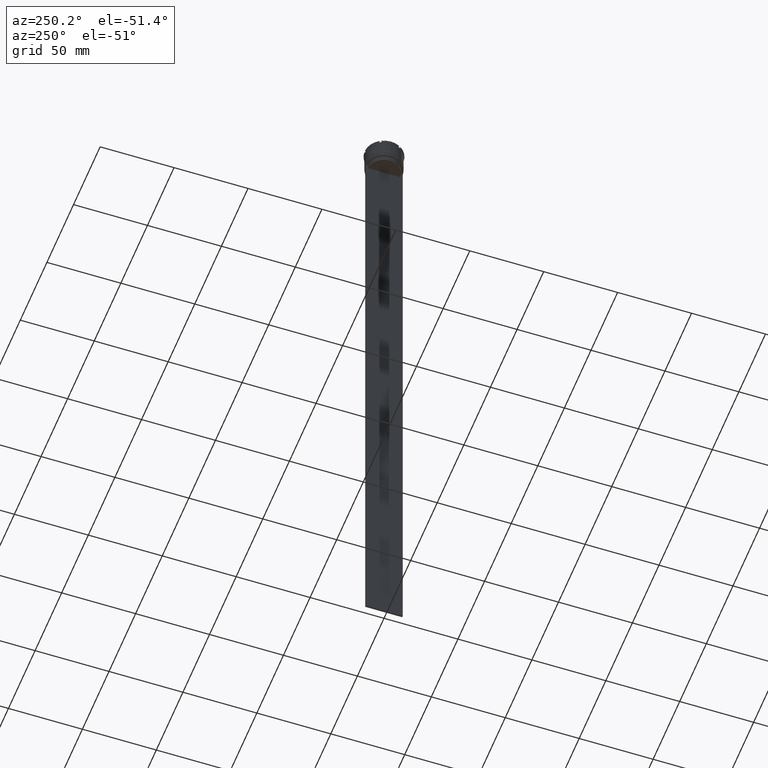
[diagram: clean part render]
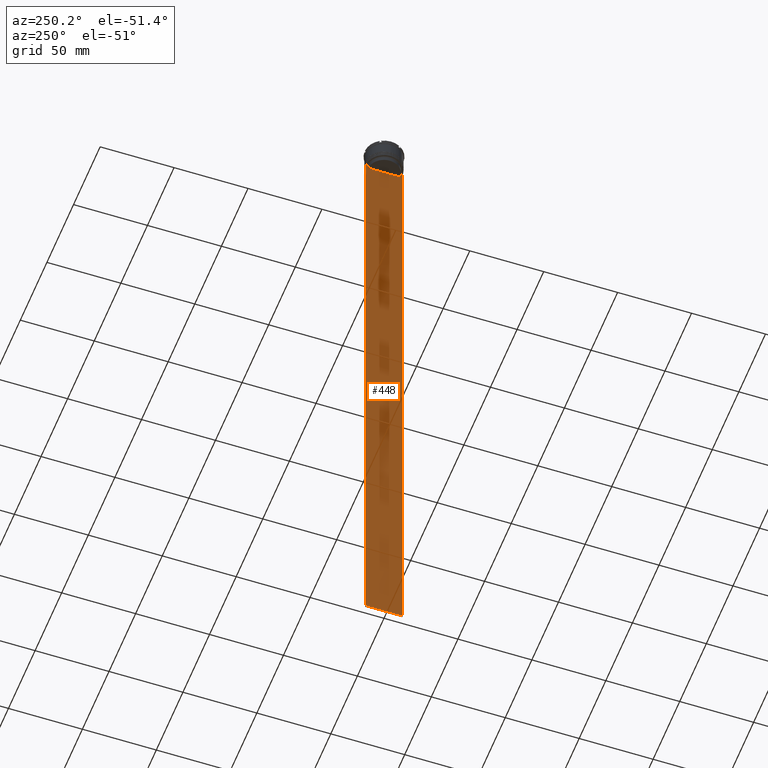
[diagram: same view with one face highlighted and labeled with its STEP entity id]
A machine part, auxiliary view. The second image highlights one B-rep face of the part: STEP entity #448.
In plain terms, the highlighted planar face has unit normal (-1, 0, 0).
Its self-contained STEP definition (entity closure, byte-faithful):
#13 = VECTOR ( 'NONE', #2528, 1000.000000000000000 ) ;
#66 = CARTESIAN_POINT ( 'NONE',  ( -0.5000000000000000000, 10.88852607105296322, 0.000000000000000000 ) ) ;
#74 = LINE ( 'NONE', #914, #2055 ) ;
#78 = CARTESIAN_POINT ( 'NONE',  ( -0.5000000000000000000, -12.38991525394746773, -14.00000000000000178 ) ) ;
#96 = FACE_OUTER_BOUND ( 'NONE', #1534, .T. ) ;
#152 = LINE ( 'NONE', #2799, #2852 ) ;
#170 = CARTESIAN_POINT ( 'NONE',  ( -0.5000000000000000000, -12.49999999999999289, -14.00000000000000178 ) ) ;
#228 = VERTEX_POINT ( 'NONE', #644 ) ;
#248 = EDGE_CURVE ( 'NONE', #587, #881, #2608, .T. ) ;
#299 = ORIENTED_EDGE ( 'NONE', *, *, #1938, .F. ) ;
#317 = LINE ( 'NONE', #2515, #1820 ) ;
#343 = CARTESIAN_POINT ( 'NONE',  ( -0.5000000000000000000, -10.88852607105296322, -14.50000000000000000 ) ) ;
#367 = VERTEX_POINT ( 'NONE', #455 ) ;
#368 = DIRECTION ( 'NONE',  ( 0.000000000000000000, -1.000000000000000000, 0.000000000000000000 ) ) ;
#397 = CARTESIAN_POINT ( 'NONE',  ( -0.5000000000000000000, -11.38902980942626719, -14.00000000000000178 ) ) ;
#448 = ADVANCED_FACE ( 'NONE', ( #96 ), #2088, .T. ) ;
#455 = CARTESIAN_POINT ( 'NONE',  ( -0.5000000000000000000, 10.88852607105296322, -14.50000000000000000 ) ) ;
#463 = CARTESIAN_POINT ( 'NONE',  ( -0.5000000000000000000, 12.50000000000000711, 11.01999200639360765 ) ) ;
#521 = VECTOR ( 'NONE', #2005, 1000.000000000000000 ) ;
#587 = VERTEX_POINT ( 'NONE', #2164 ) ;
#589 = CARTESIAN_POINT ( 'NONE',  ( -0.5000000000000000000, 10.88852607105296322, -14.50000000000000000 ) ) ;
#644 = CARTESIAN_POINT ( 'NONE',  ( -0.5000000000000000000, 12.50000000000000711, -464.0000000000000000 ) ) ;
#652 = LINE ( 'NONE', #463, #521 ) ;
#696 = ORIENTED_EDGE ( 'NONE', *, *, #1887, .F. ) ;
#749 = ORIENTED_EDGE ( 'NONE', *, *, #248, .F. ) ;
#768 = CARTESIAN_POINT ( 'NONE',  ( -0.5000000000000000000, -12.49999999999999289, -14.00000000000000178 ) ) ;
#821 = CARTESIAN_POINT ( 'NONE',  ( -0.5000000000000000000, 11.38902980942626719, -14.00000000000000178 ) ) ;
#828 = B_SPLINE_CURVE_WITH_KNOTS ( 'NONE', 3,
 ( #343, #1676, #2549, #1186 ),
 .UNSPECIFIED., .F., .F.,
 ( 4, 4 ),
 ( 0.05041323384703226551, 0.05112713601261605068 ),
 .UNSPECIFIED. ) ;
#843 = DIRECTION ( 'NONE',  ( 0.000000000000000000, -1.000000000000000000, 0.000000000000000000 ) ) ;
#849 = VERTEX_POINT ( 'NONE', #2698 ) ;
#852 = DIRECTION ( 'NONE',  ( 0.000000000000000000, -1.000000000000000000, 0.000000000000000000 ) ) ;
#881 = VERTEX_POINT ( 'NONE', #2868 ) ;
#898 = VECTOR ( 'NONE', #852, 1000.000000000000000 ) ;
#901 = CARTESIAN_POINT ( 'NONE',  ( -0.5000000000000000000, -12.49999999999999289, 11.01999200639360765 ) ) ;
#914 = CARTESIAN_POINT ( 'NONE',  ( -0.5000000000000000000, -10.88852607105296322, 0.000000000000000000 ) ) ;
#932 = VERTEX_POINT ( 'NONE', #78 ) ;
#945 = EDGE_CURVE ( 'NONE', #367, #1391, #1664, .T. ) ;
#1001 = B_SPLINE_CURVE_WITH_KNOTS ( 'NONE', 3,
 ( #821, #2771, #1020, #589 ),
 .UNSPECIFIED., .F., .F.,
 ( 4, 4 ),
 ( 0.01935560801904634073, 0.02006307108468586772 ),
 .UNSPECIFIED. ) ;
#1020 = CARTESIAN_POINT ( 'NONE',  ( -0.5000000000000000000, 11.05536450345590538, -14.33333719074559376 ) ) ;
#1071 = EDGE_CURVE ( 'NONE', #2210, #228, #1948, .T. ) ;
#1109 = ORIENTED_EDGE ( 'NONE', *, *, #2453, .F. ) ;
#1186 = CARTESIAN_POINT ( 'NONE',  ( -0.5000000000000000000, -11.38902980942626719, -14.00000000000000178 ) ) ;
#1245 = EDGE_CURVE ( 'NONE', #1798, #2210, #1303, .T. ) ;
#1254 = CARTESIAN_POINT ( 'NONE',  ( -0.5000000000000000000, -12.49999999999999289, -464.0000000000000000 ) ) ;
#1303 = LINE ( 'NONE', #901, #2019 ) ;
#1330 = ORIENTED_EDGE ( 'NONE', *, *, #1071, .F. ) ;
#1391 = VERTEX_POINT ( 'NONE', #2080 ) ;
#1424 = DIRECTION ( 'NONE',  ( 0.000000000000000000, 0.000000000000000000, 1.000000000000000000 ) ) ;
#1430 = CARTESIAN_POINT ( 'NONE',  ( -0.5000000000000000000, -10.88852607105296322, -14.50000000000000000 ) ) ;
#1534 = EDGE_LOOP ( 'NONE', ( #1821, #1953, #749, #2882, #1330, #2708, #1578, #696, #299, #1109, #2583, #1660 ) ) ;
#1578 = ORIENTED_EDGE ( 'NONE', *, *, #2343, .F. ) ;
#1660 = ORIENTED_EDGE ( 'NONE', *, *, #945, .F. ) ;
#1664 = LINE ( 'NONE', #66, #13 ) ;
#1676 = CARTESIAN_POINT ( 'NONE',  ( -0.5000000000000000000, -11.05536450423839234, -14.33333718996393102 ) ) ;
#1759 = EDGE_CURVE ( 'NONE', #1391, #1826, #317, .T. ) ;
#1798 = VERTEX_POINT ( 'NONE', #768 ) ;
#1820 = VECTOR ( 'NONE', #2066, 1000.000000000000000 ) ;
#1821 = ORIENTED_EDGE ( 'NONE', *, *, #2167, .F. ) ;
#1826 = VERTEX_POINT ( 'NONE', #2606 ) ;
#1887 = EDGE_CURVE ( 'NONE', #2582, #932, #2811, .T. ) ;
#1914 = DIRECTION ( 'NONE',  ( 0.000000000000000000, 1.000000000000000000, 0.000000000000000000 ) ) ;
#1922 = AXIS2_PLACEMENT_3D ( 'NONE', #2295, #2776, #1424 ) ;
#1938 = EDGE_CURVE ( 'NONE', #2168, #2582, #828, .T. ) ;
#1948 = LINE ( 'NONE', #2363, #2203 ) ;
#1953 = ORIENTED_EDGE ( 'NONE', *, *, #2209, .F. ) ;
#2005 = DIRECTION ( 'NONE',  ( 0.000000000000000000, 0.000000000000000000, -1.000000000000000000 ) ) ;
#2019 = VECTOR ( 'NONE', #2492, 1000.000000000000000 ) ;
#2049 = VECTOR ( 'NONE', #843, 1000.000000000000000 ) ;
#2055 = VECTOR ( 'NONE', #2683, 1000.000000000000000 ) ;
#2066 = DIRECTION ( 'NONE',  ( 0.000000000000000000, -1.000000000000000000, 0.000000000000000000 ) ) ;
#2080 = CARTESIAN_POINT ( 'NONE',  ( -0.5000000000000000000, 10.88852607105296144, -17.00000000000000000 ) ) ;
#2088 = PLANE ( 'NONE',  #1922 ) ;
#2161 = LINE ( 'NONE', #170, #898 ) ;
#2164 = CARTESIAN_POINT ( 'NONE',  ( -0.5000000000000000000, 12.50000000000000711, -14.00000000000000178 ) ) ;
#2167 = EDGE_CURVE ( 'NONE', #849, #367, #1001, .T. ) ;
#2168 = VERTEX_POINT ( 'NONE', #1430 ) ;
#2203 = VECTOR ( 'NONE', #1914, 1000.000000000000000 ) ;
#2209 = EDGE_CURVE ( 'NONE', #881, #849, #152, .T. ) ;
#2210 = VERTEX_POINT ( 'NONE', #1254 ) ;
#2295 = CARTESIAN_POINT ( 'NONE',  ( -0.5000000000000000000, -12.49999999999999289, 11.01999200639360765 ) ) ;
#2343 = EDGE_CURVE ( 'NONE', #932, #1798, #2161, .T. ) ;
#2354 = CARTESIAN_POINT ( 'NONE',  ( -0.5000000000000000000, -12.49999999999999289, -14.00000000000000178 ) ) ;
#2363 = CARTESIAN_POINT ( 'NONE',  ( -0.5000000000000000000, -12.49999999999999289, -464.0000000000000000 ) ) ;
#2453 = EDGE_CURVE ( 'NONE', #1826, #2168, #74, .T. ) ;
#2492 = DIRECTION ( 'NONE',  ( 0.000000000000000000, 0.000000000000000000, -1.000000000000000000 ) ) ;
#2515 = CARTESIAN_POINT ( 'NONE',  ( -0.5000000000000000000, 10.90000000000000213, -17.00000000000000000 ) ) ;
#2528 = DIRECTION ( 'NONE',  ( 0.000000000000000000, 0.000000000000000000, -1.000000000000000000 ) ) ;
#2549 = CARTESIAN_POINT ( 'NONE',  ( -0.5000000000000000000, -11.22219891450652973, -14.16667035398018903 ) ) ;
#2564 = VECTOR ( 'NONE', #2860, 1000.000000000000000 ) ;
#2582 = VERTEX_POINT ( 'NONE', #397 ) ;
#2583 = ORIENTED_EDGE ( 'NONE', *, *, #1759, .F. ) ;
#2606 = CARTESIAN_POINT ( 'NONE',  ( -0.5000000000000000000, -10.88852607105296144, -17.00000000000000000 ) ) ;
#2608 = LINE ( 'NONE', #2354, #2564 ) ;
#2683 = DIRECTION ( 'NONE',  ( -0.000000000000000000, -0.000000000000000000, 1.000000000000000000 ) ) ;
#2696 = EDGE_CURVE ( 'NONE', #587, #228, #652, .T. ) ;
#2698 = CARTESIAN_POINT ( 'NONE',  ( -0.5000000000000000000, 11.38902980942626719, -14.00000000000000178 ) ) ;
#2708 = ORIENTED_EDGE ( 'NONE', *, *, #1245, .F. ) ;
#2771 = CARTESIAN_POINT ( 'NONE',  ( -0.5000000000000000000, 11.22219891375843304, -14.16667035472756808 ) ) ;
#2776 = DIRECTION ( 'NONE',  ( -1.000000000000000000, 0.000000000000000000, 0.000000000000000000 ) ) ;
#2799 = CARTESIAN_POINT ( 'NONE',  ( -0.5000000000000000000, -12.49999999999999289, -14.00000000000000178 ) ) ;
#2811 = LINE ( 'NONE', #2839, #2049 ) ;
#2839 = CARTESIAN_POINT ( 'NONE',  ( -0.5000000000000000000, -12.49999999999999289, -14.00000000000000178 ) ) ;
#2852 = VECTOR ( 'NONE', #368, 1000.000000000000000 ) ;
#2860 = DIRECTION ( 'NONE',  ( 0.000000000000000000, -1.000000000000000000, 0.000000000000000000 ) ) ;
#2868 = CARTESIAN_POINT ( 'NONE',  ( -0.5000000000000000000, 12.38991525394746773, -14.00000000000000178 ) ) ;
#2882 = ORIENTED_EDGE ( 'NONE', *, *, #2696, .T. ) ;